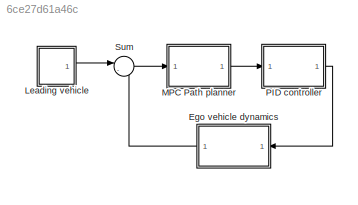
MODEL slx_6ce27d61a46c
KIND model
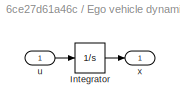
BLOCK [SubSystem] Ego vehicle dynamics
  Ports = [1, 1]
  RequestExecContextInheritance = off
BLOCK [Integrator] Ego vehicle dynamics/Integrator
  Ports = [1, 1]
BLOCK [Inport] Ego vehicle dynamics/u
  IconDisplay = Port number
BLOCK [Outport] Ego vehicle dynamics/x
  IconDisplay = Port number
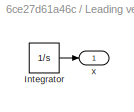
BLOCK [SubSystem] Leading vehicle
  Ports = [0, 1]
  RequestExecContextInheritance = off
BLOCK [Integrator] Leading vehicle/Integrator
  Ports = [1, 1]
BLOCK [Outport] Leading vehicle/x
  IconDisplay = Port number
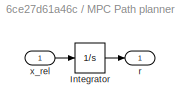
BLOCK [SubSystem] MPC Path planner
  Ports = [1, 1]
  RequestExecContextInheritance = off
BLOCK [Integrator] MPC Path planner/Integrator
  Ports = [1, 1]
BLOCK [Outport] MPC Path planner/r
  IconDisplay = Port number
BLOCK [Inport] MPC Path planner/x_rel
  IconDisplay = Port number
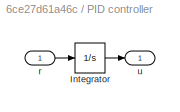
BLOCK [SubSystem] PID controller
  Ports = [1, 1]
  RequestExecContextInheritance = off
BLOCK [Integrator] PID controller/Integrator
  Ports = [1, 1]
BLOCK [Inport] PID controller/r
  IconDisplay = Port number
BLOCK [Outport] PID controller/u
  IconDisplay = Port number
BLOCK [Sum] Sum
  IconShape = round
  InputSameDT = off
  Inputs = |-+
  OutDataTypeStr = Inherit: Inherit via internal rule
  Ports = [2, 1]
  SaturateOnIntegerOverflow = off
LINE Ego vehicle dynamics/Integrator:1 -> Ego vehicle dynamics/x:1
LINE Ego vehicle dynamics/u:1 -> Ego vehicle dynamics/Integrator:1
LINE Ego vehicle dynamics:1 -> Sum:2
LINE Leading vehicle/Integrator:1 -> Leading vehicle/x:1
LINE Leading vehicle:1 -> Sum:1
LINE MPC Path planner/Integrator:1 -> MPC Path planner/r:1
LINE MPC Path planner/x_rel:1 -> MPC Path planner/Integrator:1
LINE MPC Path planner:1 -> PID controller:1
LINE PID controller/Integrator:1 -> PID controller/u:1
LINE PID controller/r:1 -> PID controller/Integrator:1
LINE PID controller:1 -> Ego vehicle dynamics:1
LINE Sum:1 -> MPC Path planner:1
